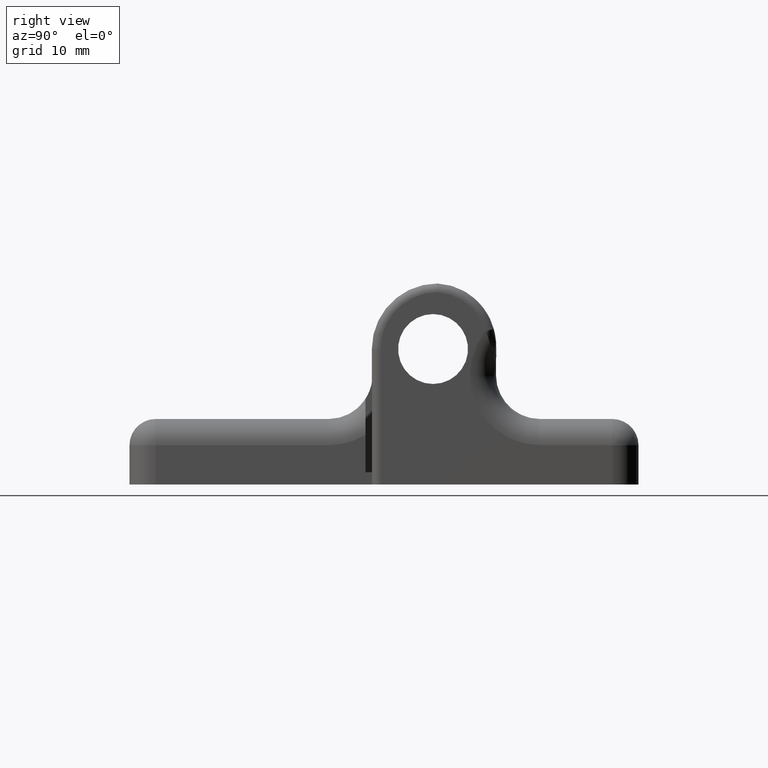
[diagram: clean part render]
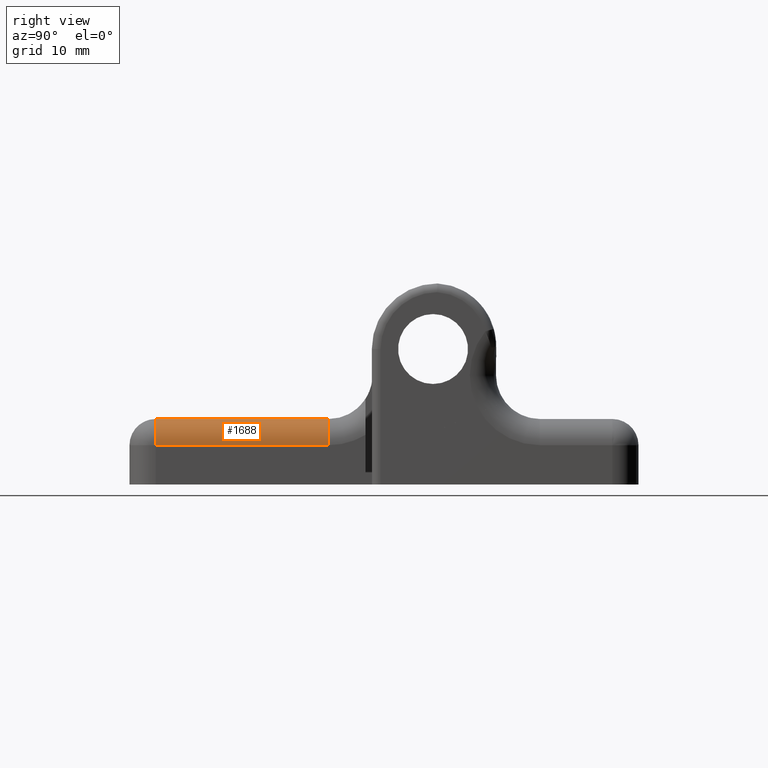
[diagram: same view with one face highlighted and labeled with its STEP entity id]
A machine part, right view. The second image highlights one B-rep face of the part: STEP entity #1688.
In plain terms, the highlighted cylindrical surface (edge-blend (fillet) strip) has radius 3 mm, axis along (0, 1, -0).
Its self-contained STEP definition (entity closure, byte-faithful):
#118=LINE('',#2541,#261);
#119=LINE('',#2542,#262);
#261=VECTOR('',#2002,19.8);
#262=VECTOR('',#2003,19.8);
#404=CYLINDRICAL_SURFACE('',#1794,3.);
#446=FACE_OUTER_BOUND('',#546,.T.);
#546=EDGE_LOOP('',(#1178,#1179,#1180,#1181));
#664=CIRCLE('',#1791,3.);
#667=CIRCLE('',#1795,3.);
#758=VERTEX_POINT('',#2531);
#759=VERTEX_POINT('',#2532);
#761=VERTEX_POINT('',#2538);
#762=VERTEX_POINT('',#2539);
#921=EDGE_CURVE('',#758,#759,#664,.T.);
#924=EDGE_CURVE('',#761,#762,#667,.T.);
#925=EDGE_CURVE('',#762,#759,#118,.T.);
#926=EDGE_CURVE('',#758,#761,#119,.T.);
#1178=ORIENTED_EDGE('',*,*,#924,.T.);
#1179=ORIENTED_EDGE('',*,*,#925,.T.);
#1180=ORIENTED_EDGE('',*,*,#921,.F.);
#1181=ORIENTED_EDGE('',*,*,#926,.T.);
#1688=ADVANCED_FACE('',(#446),#404,.T.);
#1791=AXIS2_PLACEMENT_3D('',#2533,#1992,#1993);
#1794=AXIS2_PLACEMENT_3D('',#2537,#1998,#1999);
#1795=AXIS2_PLACEMENT_3D('',#2540,#2000,#2001);
#1992=DIRECTION('center_axis',(0.,-1.,0.));
#1993=DIRECTION('ref_axis',(1.,-3.70074341541719E-16,0.));
#1998=DIRECTION('center_axis',(0.,1.,0.));
#1999=DIRECTION('ref_axis',(0.707106781186548,0.,0.707106781186547));
#2000=DIRECTION('center_axis',(0.,-1.,0.));
#2001=DIRECTION('ref_axis',(1.,0.,0.));
#2002=DIRECTION('',(0.,-1.,0.));
#2003=DIRECTION('',(0.,1.,0.));
#2531=CARTESIAN_POINT('',(37.75,-9.75,4.5));
#2532=CARTESIAN_POINT('',(34.75,-9.75,7.5));
#2533=CARTESIAN_POINT('Origin',(34.75,-9.75,4.5));
#2537=CARTESIAN_POINT('Origin',(34.75,12.7500549999986,4.5));
#2538=CARTESIAN_POINT('',(37.75,10.05,4.5));
#2539=CARTESIAN_POINT('',(34.75,10.05,7.5));
#2540=CARTESIAN_POINT('Origin',(34.75,10.05,4.5));
#2541=CARTESIAN_POINT('',(34.75,12.7500549999986,7.5));
#2542=CARTESIAN_POINT('',(37.75,12.7500549999986,4.5));